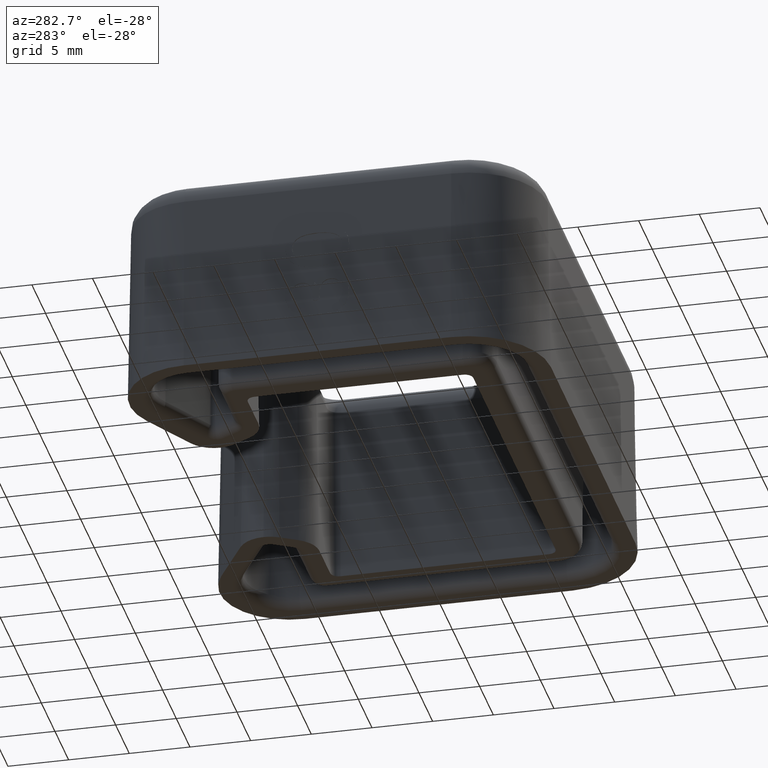
[diagram: clean part render]
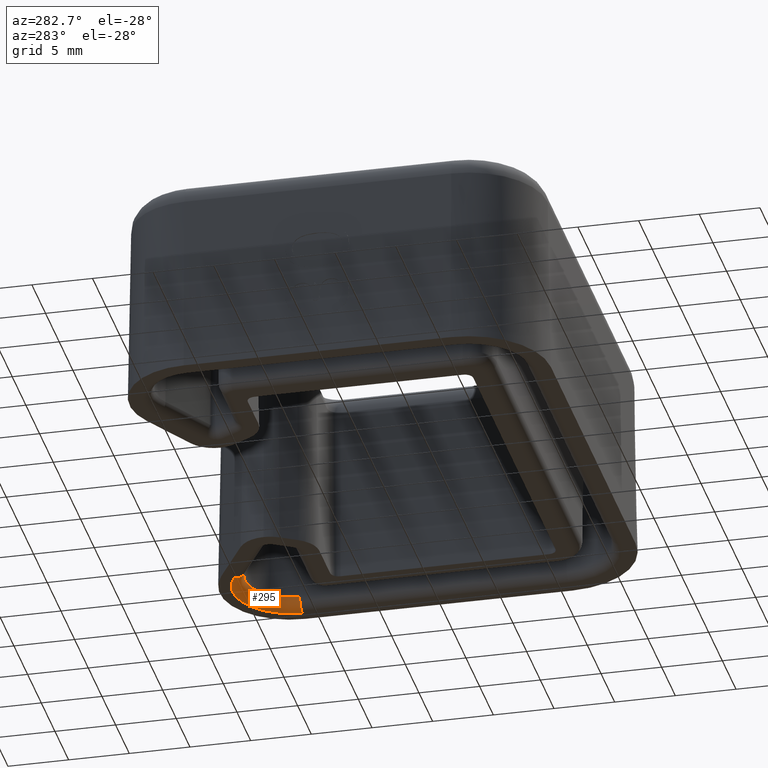
[diagram: same view with one face highlighted and labeled with its STEP entity id]
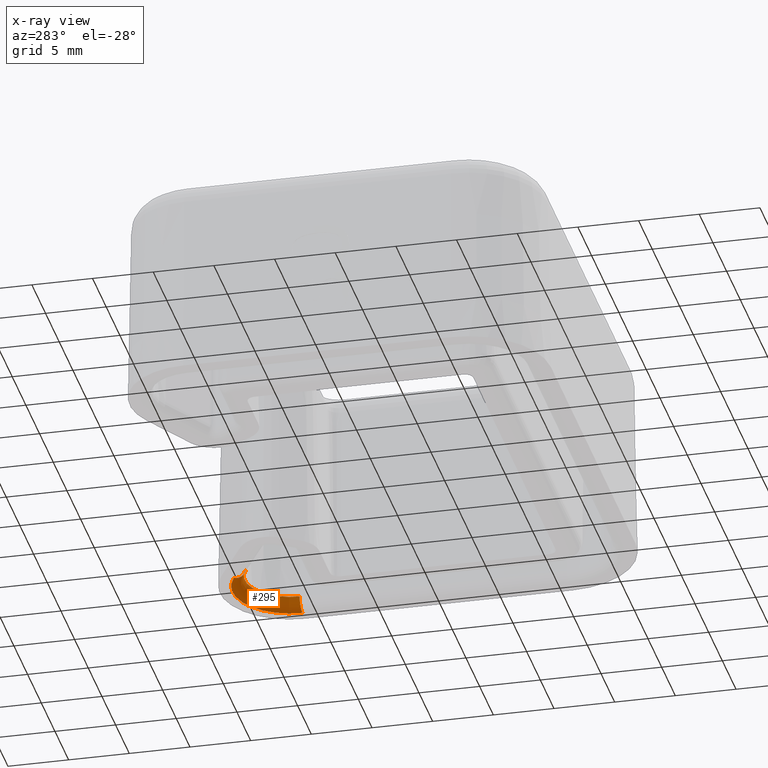
[diagram: x-ray of the same camera — body ghosted, the highlighted face saturated]
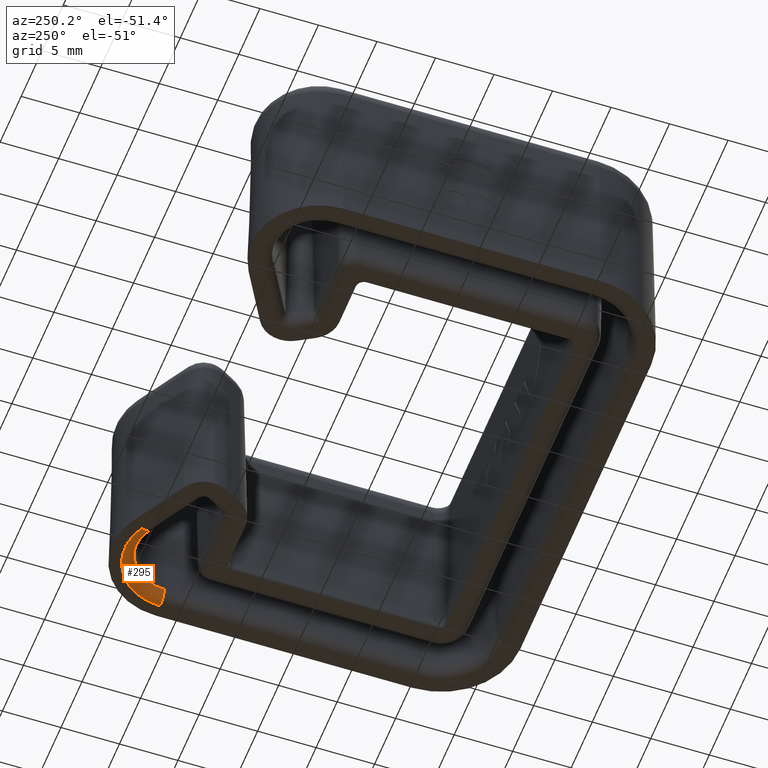
[diagram: same view with one face highlighted and labeled with its STEP entity id]
A machine part, auxiliary view. The second image highlights one B-rep face of the part: STEP entity #295.
The next image is the same camera in x-ray: the body ghosted, the highlighted face saturated — about 0% of this face is hidden behind the body in this view.
A second angle (auxiliary view) of the same face is appended — the face is thin or edge-on in the first view.
In plain terms, the highlighted toroidal blend (fillet) surface has major radius 4.6945 mm and minor (blend) radius 1 mm.
Its self-contained STEP definition (entity closure, byte-faithful):
#295=ADVANCED_FACE('',(#636),#637,.T.);
#636=FACE_OUTER_BOUND('',#1049,.T.);
#637=TOROIDAL_SURFACE('',#1050,4.69452323703926,1.0);
#1049=EDGE_LOOP('',(#2502,#2503,#2504,#2505));
#1050=AXIS2_PLACEMENT_3D('',#2506,#2507,#2508);
#2502=ORIENTED_EDGE('',*,*,#3171,.T.);
#2503=ORIENTED_EDGE('',*,*,#3027,.F.);
#2504=ORIENTED_EDGE('',*,*,#3168,.F.);
#2505=ORIENTED_EDGE('',*,*,#3172,.F.);
#2506=CARTESIAN_POINT('',(16.4999999999857,26.5000000000168,1.0));
#2507=DIRECTION('',(0.0,0.0,-1.0));
#2508=DIRECTION('',(-1.0,0.0,0.0));
#3027=EDGE_CURVE('',#3631,#3633,#3634,.F.);
#3168=EDGE_CURVE('',#3855,#3631,#3856,.T.);
#3171=EDGE_CURVE('',#3859,#3633,#3860,.T.);
#3172=EDGE_CURVE('',#3859,#3855,#3861,.T.);
#3631=VERTEX_POINT('',#5265);
#3633=VERTEX_POINT('',#5268);
#3634=CIRCLE('',#5269,4.69452323703926);
#3855=VERTEX_POINT('',#5558);
#3856=CIRCLE('',#5559,1.0);
#3859=VERTEX_POINT('',#5564);
#3860=CIRCLE('',#5565,1.0);
#3861=CIRCLE('',#5566,3.69467554188288);
#5265=CARTESIAN_POINT('',(21.194523237025,26.5000000000188,0.0));
#5268=CARTESIAN_POINT('',(14.1527383814609,30.5655763819462,0.0));
#5269=AXIS2_PLACEMENT_3D('',#5935,#5936,#5937);
#5558=CARTESIAN_POINT('',(20.1946755418686,26.5000000000184,0.982547593562718));
#5559=AXIS2_PLACEMENT_3D('',#6222,#6223,#6224);
#5564=CARTESIAN_POINT('',(14.6526622290402,29.699682878026,0.98254759356272));
#5565=AXIS2_PLACEMENT_3D('',#6227,#6228,#6229);
#5566=AXIS2_PLACEMENT_3D('',#6230,#6231,#6232);
#5935=CARTESIAN_POINT('',(16.4999999999857,26.5000000000168,2.16840434497101E-16));
#5936=DIRECTION('',(0.0,0.0,-1.0));
#5937=DIRECTION('',(-1.0,0.0,0.0));
#6222=CARTESIAN_POINT('',(21.1945232370249,26.5000000000188,1.0));
#6223=DIRECTION('',(4.44156857090719E-13,-1.0,0.0));
#6224=DIRECTION('',(1.0,4.44156857090719E-13,0.0));
#6227=CARTESIAN_POINT('',(14.1527383814611,30.5655763819459,1.0));
#6228=DIRECTION('',(0.866025403783811,0.500000000001086,2.32408877244505E-16));
#6229=DIRECTION('',(-0.500000000001086,0.866025403783812,-1.29012843322066E-31));
#6230=CARTESIAN_POINT('',(16.4999999999857,26.5000000000168,0.982547593562719));
#6231=DIRECTION('',(0.0,0.0,-1.0));
#6232=DIRECTION('',(-1.0,0.0,0.0));